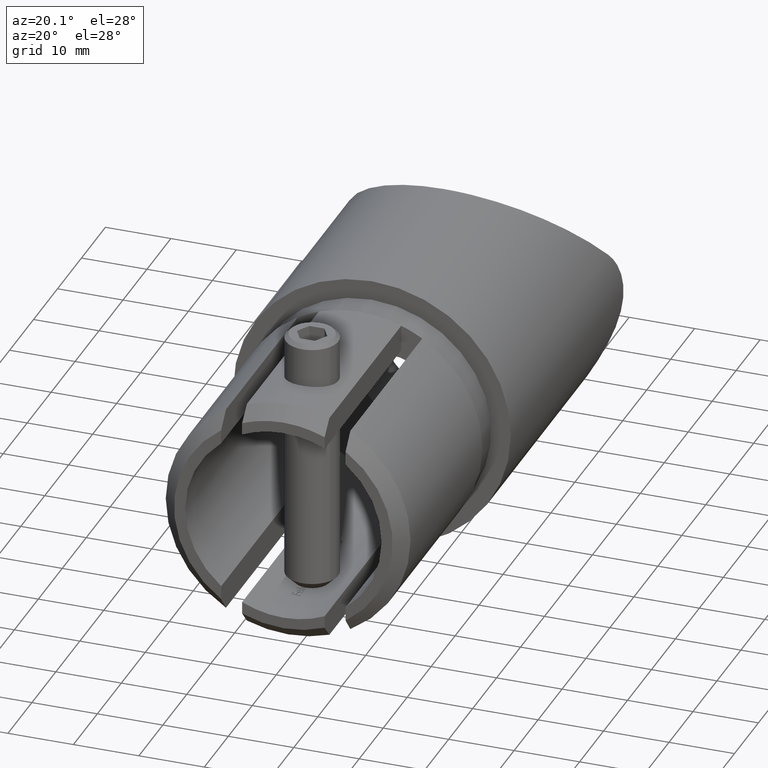
[diagram: clean part render]
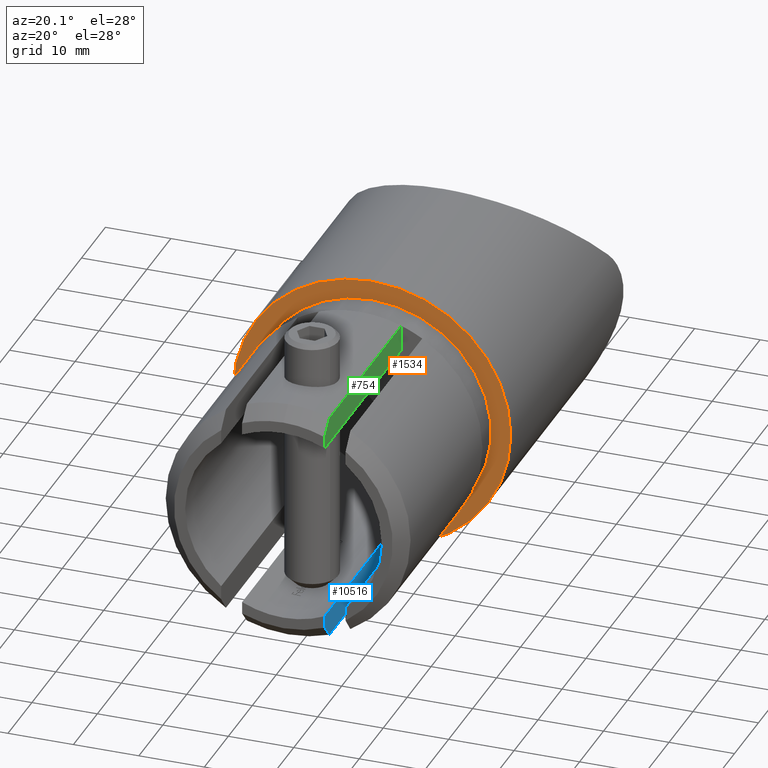
[diagram: same view with three faces highlighted in distinct colors, each labeled with its STEP entity id]
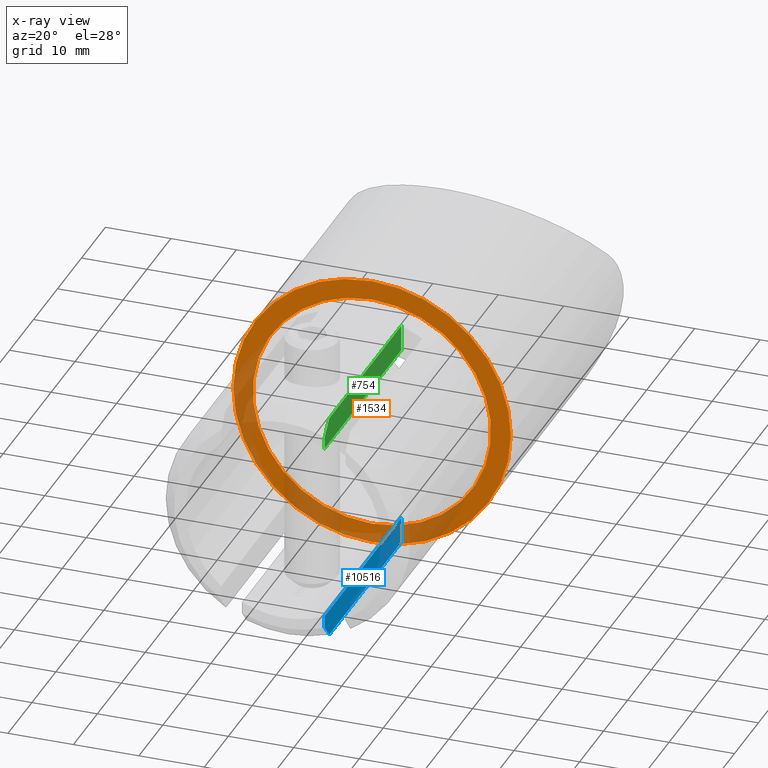
[diagram: x-ray of the same camera — body ghosted, the three highlighted faces saturated]
A machine part, auxiliary view with three faces highlighted in distinct colors.
The next image is the same camera in x-ray (body ghosted, the three faces saturated) — at least one of them is partly hidden behind the body in this view.
Their STEP definitions:

[orange] entity #1534 — the highlighted planar face has unit normal (0, 1, 0).
#358 = DIRECTION ( 'NONE',  ( 0.0000000000000000000, 0.0000000000000000000, 1.000000000000000000 ) ) ;
#390 = CARTESIAN_POINT ( 'NONE',  ( 2.596251214192388800E-015, 0.0000000000000000000, 21.19999999999999900 ) ) ;
#437 = ORIENTED_EDGE ( 'NONE', *, *, #3872, .F. ) ;
#834 = CIRCLE ( 'NONE', #3569, 18.19999999999999900 ) ;
#913 = VERTEX_POINT ( 'NONE', #9329 ) ;
#1534 = ADVANCED_FACE ( 'NONE', ( #2037, #12237 ), #4835, .F. ) ;
#1720 = EDGE_CURVE ( 'NONE', #6891, #8316, #8376, .T. ) ;
#2037 = FACE_BOUND ( 'NONE', #7031, .T. ) ;
#2141 = DIRECTION ( 'NONE',  ( 0.0000000000000000000, 0.0000000000000000000, 1.000000000000000000 ) ) ;
#2497 = AXIS2_PLACEMENT_3D ( 'NONE', #4361, #9635, #12892 ) ;
#2631 = DIRECTION ( 'NONE',  ( 0.0000000000000000000, -0.0000000000000000000, 1.000000000000000000 ) ) ;
#3357 = CARTESIAN_POINT ( 'NONE',  ( 0.0000000000000000000, 0.0000000000000000000, 0.0000000000000000000 ) ) ;
#3451 = AXIS2_PLACEMENT_3D ( 'NONE', #3357, #11918, #6585 ) ;
#3494 = DIRECTION ( 'NONE',  ( 0.0000000000000000000, 1.000000000000000000, 0.0000000000000000000 ) ) ;
#3569 = AXIS2_PLACEMENT_3D ( 'NONE', #11909, #10649, #2141 ) ;
#3664 = EDGE_LOOP ( 'NONE', ( #5406, #7849 ) ) ;
#3872 = EDGE_CURVE ( 'NONE', #913, #7753, #834, .T. ) ;
#4361 = CARTESIAN_POINT ( 'NONE',  ( 0.0000000000000000000, 0.0000000000000000000, 0.0000000000000000000 ) ) ;
#4634 = AXIS2_PLACEMENT_3D ( 'NONE', #5831, #3494, #358 ) ;
#4655 = CARTESIAN_POINT ( 'NONE',  ( 0.0000000000000000000, 0.0000000000000000000, 0.0000000000000000000 ) ) ;
#4656 = AXIS2_PLACEMENT_3D ( 'NONE', #4655, #11089, #2631 ) ;
#4835 = PLANE ( 'NONE',  #4656 ) ;
#5406 = ORIENTED_EDGE ( 'NONE', *, *, #1720, .F. ) ;
#5831 = CARTESIAN_POINT ( 'NONE',  ( 0.0000000000000000000, 0.0000000000000000000, 0.0000000000000000000 ) ) ;
#6585 = DIRECTION ( 'NONE',  ( 0.0000000000000000000, 0.0000000000000000000, 1.000000000000000000 ) ) ;
#6891 = VERTEX_POINT ( 'NONE', #11502 ) ;
#7031 = EDGE_LOOP ( 'NONE', ( #11913, #437 ) ) ;
#7753 = VERTEX_POINT ( 'NONE', #9518 ) ;
#7849 = ORIENTED_EDGE ( 'NONE', *, *, #13252, .F. ) ;
#8316 = VERTEX_POINT ( 'NONE', #390 ) ;
#8376 = CIRCLE ( 'NONE', #2497, 21.19999999999999900 ) ;
#9105 = CIRCLE ( 'NONE', #4634, 21.19999999999999900 ) ;
#9329 = CARTESIAN_POINT ( 'NONE',  ( 2.228857174448182900E-015, 0.0000000000000000000, -18.19999999999999900 ) ) ;
#9518 = CARTESIAN_POINT ( 'NONE',  ( 0.0000000000000000000, 0.0000000000000000000, 18.19999999999999900 ) ) ;
#9635 = DIRECTION ( 'NONE',  ( 0.0000000000000000000, 1.000000000000000000, 0.0000000000000000000 ) ) ;
#10649 = DIRECTION ( 'NONE',  ( -0.0000000000000000000, -1.000000000000000000, -0.0000000000000000000 ) ) ;
#11089 = DIRECTION ( 'NONE',  ( 0.0000000000000000000, 1.000000000000000000, 0.0000000000000000000 ) ) ;
#11502 = CARTESIAN_POINT ( 'NONE',  ( 0.0000000000000000000, 0.0000000000000000000, -21.19999999999999900 ) ) ;
#11909 = CARTESIAN_POINT ( 'NONE',  ( 0.0000000000000000000, 0.0000000000000000000, 0.0000000000000000000 ) ) ;
#11913 = ORIENTED_EDGE ( 'NONE', *, *, #13112, .F. ) ;
#11918 = DIRECTION ( 'NONE',  ( -0.0000000000000000000, -1.000000000000000000, -0.0000000000000000000 ) ) ;
#12237 = FACE_OUTER_BOUND ( 'NONE', #3664, .T. ) ;
#12817 = CIRCLE ( 'NONE', #3451, 18.19999999999999900 ) ;
#12892 = DIRECTION ( 'NONE',  ( 0.0000000000000000000, 0.0000000000000000000, 1.000000000000000000 ) ) ;
#13112 = EDGE_CURVE ( 'NONE', #7753, #913, #12817, .T. ) ;
#13252 = EDGE_CURVE ( 'NONE', #8316, #6891, #9105, .T. ) ;

[blue] entity #10516 — the highlighted planar face has unit normal (-1, 0, 0).
#132 = CARTESIAN_POINT ( 'NONE',  ( 6.300000000000000700, 9.000000000000001800, -13.61286156544611200 ) ) ;
#491 = EDGE_LOOP ( 'NONE', ( #11259, #13751, #3935, #2530, #7420 ) ) ;
#497 = CARTESIAN_POINT ( 'NONE',  ( 6.299999999999999800, -35.66948056028462600, -16.89576917054657600 ) ) ;
#589 = EDGE_CURVE ( 'NONE', #7318, #11368, #13626, .T. ) ;
#1742 = VECTOR ( 'NONE', #13855, 1000.000000000000000 ) ;
#1797 = DIRECTION ( 'NONE',  ( -0.0000000000000000000, -0.0000000000000000000, 1.000000000000000000 ) ) ;
#2285 = FACE_OUTER_BOUND ( 'NONE', #491, .T. ) ;
#2360 = CARTESIAN_POINT ( 'NONE',  ( 6.299999999999999800, -37.00000000000000000, -15.46609194334498500 ) ) ;
#2530 = ORIENTED_EDGE ( 'NONE', *, *, #7838, .T. ) ;
#3173 = VERTEX_POINT ( 'NONE', #9515 ) ;
#3935 = ORIENTED_EDGE ( 'NONE', *, *, #8473, .F. ) ;
#4357 = CARTESIAN_POINT ( 'NONE',  ( 6.300000000000000700, -4.999999999999990200, -17.60681686165901300 ) ) ;
#5320 = CARTESIAN_POINT ( 'NONE',  ( 6.299999999999999800, -37.00000000000000000, -13.61286156544611200 ) ) ;
#5345 = CARTESIAN_POINT ( 'NONE',  ( 6.300000000000000700, -4.999999999999990200, -21.19999999999999900 ) ) ;
#5485 = DIRECTION ( 'NONE',  ( -0.0000000000000000000, -0.0000000000000000000, 1.000000000000000000 ) ) ;
#5649 = B_SPLINE_CURVE_WITH_KNOTS ( 'NONE', 3,
 ( #13335, #7995, #497, #5775 ),
 .UNSPECIFIED., .F., .F.,
 ( 4, 4 ),
 ( 0.07284254844285360800, 0.07575993842085485000 ),
 .UNSPECIFIED. ) ;
#5775 = CARTESIAN_POINT ( 'NONE',  ( 6.299999999999999800, -35.00000000000000000, -17.60681686165902700 ) ) ;
#6226 = CARTESIAN_POINT ( 'NONE',  ( 6.299999999999999800, -37.00000000000000000, -17.60681686165900900 ) ) ;
#6821 = LINE ( 'NONE', #132, #13907 ) ;
#6904 = DIRECTION ( 'NONE',  ( -1.000000000000000000, 2.710505431213760500E-017, 0.0000000000000000000 ) ) ;
#7103 = CARTESIAN_POINT ( 'NONE',  ( 6.299999999999999800, -37.00000000000000000, -21.19999999999999900 ) ) ;
#7318 = VERTEX_POINT ( 'NONE', #4357 ) ;
#7420 = ORIENTED_EDGE ( 'NONE', *, *, #13908, .F. ) ;
#7593 = LINE ( 'NONE', #6226, #1742 ) ;
#7640 = AXIS2_PLACEMENT_3D ( 'NONE', #13503, #6904, #10136 ) ;
#7705 = EDGE_CURVE ( 'NONE', #12105, #11368, #6821, .T. ) ;
#7838 = EDGE_CURVE ( 'NONE', #12223, #3173, #5649, .T. ) ;
#7995 = CARTESIAN_POINT ( 'NONE',  ( 6.299999999999999800, -36.33650805472084500, -16.18251827307010500 ) ) ;
#8322 = LINE ( 'NONE', #7103, #12012 ) ;
#8449 = DIRECTION ( 'NONE',  ( 0.0000000000000000000, 1.000000000000000000, 0.0000000000000000000 ) ) ;
#8473 = EDGE_CURVE ( 'NONE', #12223, #12105, #8322, .T. ) ;
#9515 = CARTESIAN_POINT ( 'NONE',  ( 6.299999999999999800, -35.00000000000000000, -17.60681686165902700 ) ) ;
#10136 = DIRECTION ( 'NONE',  ( -2.710505431213760500E-017, -1.000000000000000000, 0.0000000000000000000 ) ) ;
#10419 = CARTESIAN_POINT ( 'NONE',  ( 6.300000000000000700, -4.999999999999990200, -13.61286156544611200 ) ) ;
#10516 = ADVANCED_FACE ( 'NONE', ( #2285 ), #11217, .F. ) ;
#11065 = VECTOR ( 'NONE', #5485, 1000.000000000000000 ) ;
#11217 = PLANE ( 'NONE',  #7640 ) ;
#11259 = ORIENTED_EDGE ( 'NONE', *, *, #589, .T. ) ;
#11368 = VERTEX_POINT ( 'NONE', #10419 ) ;
#12012 = VECTOR ( 'NONE', #1797, 1000.000000000000000 ) ;
#12105 = VERTEX_POINT ( 'NONE', #5320 ) ;
#12223 = VERTEX_POINT ( 'NONE', #2360 ) ;
#13335 = CARTESIAN_POINT ( 'NONE',  ( 6.299999999999999800, -37.00000000000000000, -15.46609194334498500 ) ) ;
#13503 = CARTESIAN_POINT ( 'NONE',  ( 6.300000000000000700, -4.999999999999990200, -21.19999999999999900 ) ) ;
#13626 = LINE ( 'NONE', #5345, #11065 ) ;
#13751 = ORIENTED_EDGE ( 'NONE', *, *, #7705, .F. ) ;
#13855 = DIRECTION ( 'NONE',  ( 0.0000000000000000000, -1.000000000000000000, 0.0000000000000000000 ) ) ;
#13907 = VECTOR ( 'NONE', #8449, 1000.000000000000000 ) ;
#13908 = EDGE_CURVE ( 'NONE', #7318, #3173, #7593, .T. ) ;

[green] entity #754 — the highlighted planar face has unit normal (-1, 0, 0).
#43 = B_SPLINE_CURVE_WITH_KNOTS ( 'NONE', 3,
 ( #10031, #9889, #9935, #13113 ),
 .UNSPECIFIED., .F., .F.,
 ( 4, 4 ),
 ( 0.03220571265633009900, 0.03513533437916189400 ),
 .UNSPECIFIED. ) ;
#58 = VERTEX_POINT ( 'NONE', #13396 ) ;
#167 = CARTESIAN_POINT ( 'NONE',  ( 6.299999999999999800, -37.00000000000000000, 13.61286156544611400 ) ) ;
#361 = FACE_OUTER_BOUND ( 'NONE', #12141, .T. ) ;
#461 = DIRECTION ( 'NONE',  ( -2.710505431213760500E-017, -1.000000000000000000, 0.0000000000000000000 ) ) ;
#754 = ADVANCED_FACE ( 'NONE', ( #361 ), #6811, .F. ) ;
#1119 = ORIENTED_EDGE ( 'NONE', *, *, #7984, .T. ) ;
#1428 = VECTOR ( 'NONE', #2301, 1000.000000000000000 ) ;
#1668 = CARTESIAN_POINT ( 'NONE',  ( 6.300000000000000700, -4.999999999999990200, -21.19999999999999900 ) ) ;
#2128 = ORIENTED_EDGE ( 'NONE', *, *, #13789, .F. ) ;
#2301 = DIRECTION ( 'NONE',  ( -0.0000000000000000000, -1.000000000000000000, -0.0000000000000000000 ) ) ;
#2359 = EDGE_CURVE ( 'NONE', #58, #6239, #43, .T. ) ;
#2837 = EDGE_CURVE ( 'NONE', #12258, #6239, #12908, .T. ) ;
#2972 = CARTESIAN_POINT ( 'NONE',  ( 6.300000000000000700, -4.999999999999990200, 13.61286156544611200 ) ) ;
#4083 = ORIENTED_EDGE ( 'NONE', *, *, #2837, .F. ) ;
#4277 = LINE ( 'NONE', #11741, #1428 ) ;
#4408 = ORIENTED_EDGE ( 'NONE', *, *, #12631, .F. ) ;
#4666 = VECTOR ( 'NONE', #6246, 1000.000000000000000 ) ;
#4724 = DIRECTION ( 'NONE',  ( -1.000000000000000000, 2.710505431213760500E-017, 0.0000000000000000000 ) ) ;
#4882 = CARTESIAN_POINT ( 'NONE',  ( 6.299999999999999800, -37.00000000000000000, 17.60681686165900900 ) ) ;
#5003 = VERTEX_POINT ( 'NONE', #5498 ) ;
#5498 = CARTESIAN_POINT ( 'NONE',  ( 6.300000000000000700, -4.999999999999990200, 17.60681686165901300 ) ) ;
#5763 = VECTOR ( 'NONE', #9164, 1000.000000000000000 ) ;
#6239 = VERTEX_POINT ( 'NONE', #6984 ) ;
#6246 = DIRECTION ( 'NONE',  ( -0.0000000000000000000, -0.0000000000000000000, 1.000000000000000000 ) ) ;
#6811 = PLANE ( 'NONE',  #8465 ) ;
#6984 = CARTESIAN_POINT ( 'NONE',  ( 6.299999999999999800, -37.00000000000000000, 15.46609194334498500 ) ) ;
#7176 = VECTOR ( 'NONE', #11670, 1000.000000000000000 ) ;
#7984 = EDGE_CURVE ( 'NONE', #11073, #5003, #12711, .T. ) ;
#8465 = AXIS2_PLACEMENT_3D ( 'NONE', #1668, #4724, #461 ) ;
#9164 = DIRECTION ( 'NONE',  ( -0.0000000000000000000, 1.000000000000000000, -0.0000000000000000000 ) ) ;
#9889 = CARTESIAN_POINT ( 'NONE',  ( 6.299999999999999800, -35.66943358069998000, 16.89581906702926500 ) ) ;
#9935 = CARTESIAN_POINT ( 'NONE',  ( 6.299999999999999800, -36.33645551718920800, 16.18257500212496700 ) ) ;
#10031 = CARTESIAN_POINT ( 'NONE',  ( 6.299999999999999800, -35.00000000000001400, 17.60681686165900900 ) ) ;
#11073 = VERTEX_POINT ( 'NONE', #2972 ) ;
#11604 = ORIENTED_EDGE ( 'NONE', *, *, #2359, .T. ) ;
#11670 = DIRECTION ( 'NONE',  ( -0.0000000000000000000, -0.0000000000000000000, 1.000000000000000000 ) ) ;
#11741 = CARTESIAN_POINT ( 'NONE',  ( 6.300000000000000700, 9.000000000000001800, 13.61286156544611200 ) ) ;
#12141 = EDGE_LOOP ( 'NONE', ( #11604, #4083, #4408, #1119, #2128 ) ) ;
#12258 = VERTEX_POINT ( 'NONE', #167 ) ;
#12631 = EDGE_CURVE ( 'NONE', #11073, #12258, #4277, .T. ) ;
#12711 = LINE ( 'NONE', #13824, #4666 ) ;
#12908 = LINE ( 'NONE', #13869, #7176 ) ;
#13113 = CARTESIAN_POINT ( 'NONE',  ( 6.299999999999999800, -37.00000000000000000, 15.46609194334498500 ) ) ;
#13320 = LINE ( 'NONE', #4882, #5763 ) ;
#13396 = CARTESIAN_POINT ( 'NONE',  ( 6.299999999999999800, -35.00000000000001400, 17.60681686165900900 ) ) ;
#13789 = EDGE_CURVE ( 'NONE', #58, #5003, #13320, .T. ) ;
#13824 = CARTESIAN_POINT ( 'NONE',  ( 6.300000000000000700, -4.999999999999990200, -21.19999999999999900 ) ) ;
#13869 = CARTESIAN_POINT ( 'NONE',  ( 6.299999999999999800, -37.00000000000000000, -21.19999999999999900 ) ) ;